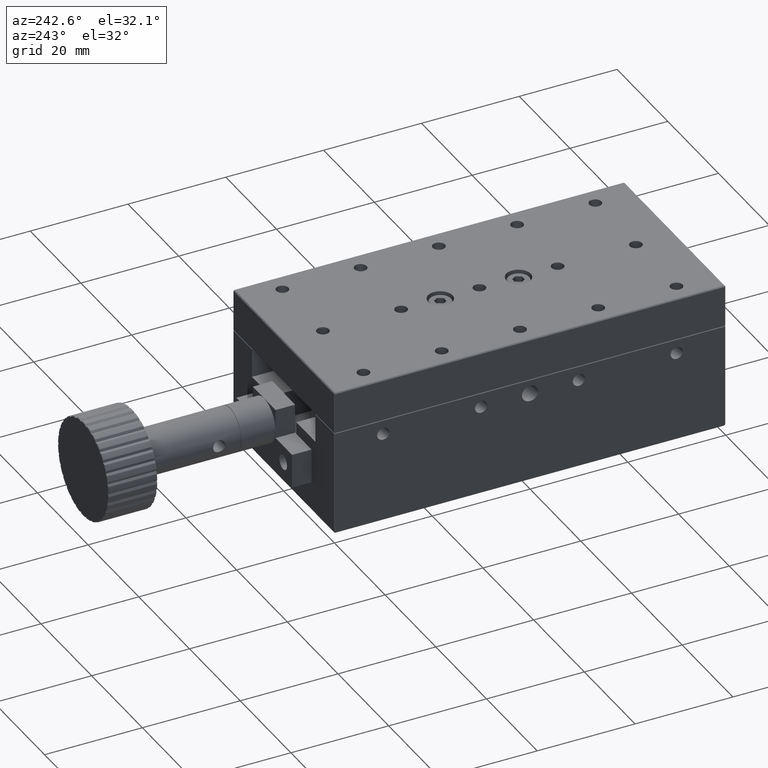
[diagram: clean part render]
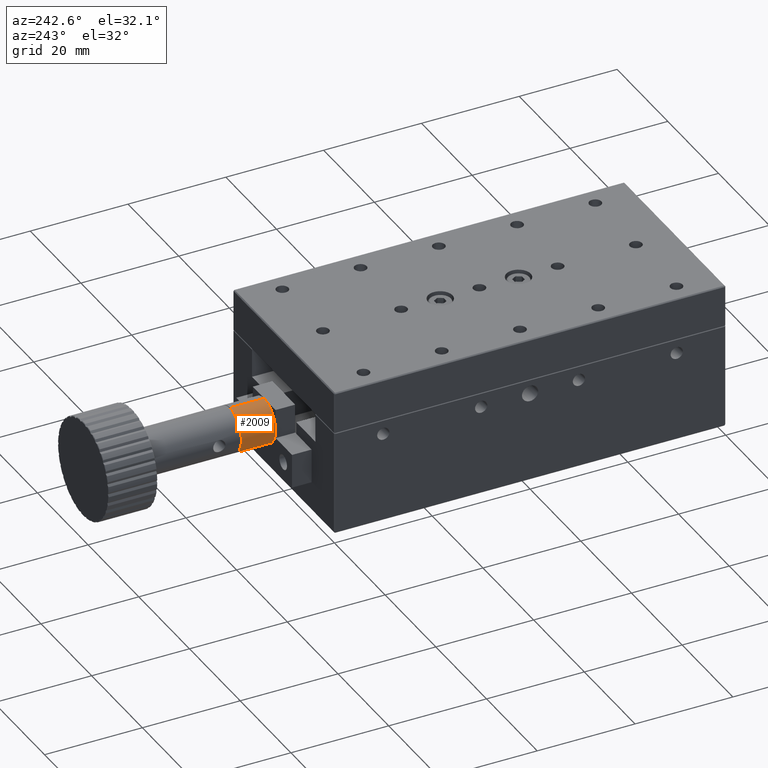
[diagram: same view with one face highlighted and labeled with its STEP entity id]
A machine part, auxiliary view. The second image highlights one B-rep face of the part: STEP entity #2009.
In plain terms, the highlighted cylindrical surface (edge-blend (fillet) strip) has radius 4.5 mm, axis along (0, -1, -0).
Its self-contained STEP definition (entity closure, byte-faithful):
#413 = ORIENTED_EDGE ( 'NONE', *, *, #6730, .T. ) ;
#872 = VERTEX_POINT ( 'NONE', #26988 ) ;
#1443 = EDGE_CURVE ( 'NONE', #19476, #2236, #15905, .T. ) ;
#2009 = ADVANCED_FACE ( 'NONE', ( #2333 ), #10891, .T. ) ;
#2236 = VERTEX_POINT ( 'NONE', #14447 ) ;
#2333 = FACE_OUTER_BOUND ( 'NONE', #16877, .T. ) ;
#4769 = VECTOR ( 'NONE', #22023, 1000.000000000000000 ) ;
#6003 = DIRECTION ( 'NONE',  ( -0.0000000000000000000, 1.000000000000000000, 0.0000000000000000000 ) ) ;
#6516 = CARTESIAN_POINT ( 'NONE',  ( 0.0000000000000000000, 51.00000000000000700, 14.50000000000000000 ) ) ;
#6574 = ORIENTED_EDGE ( 'NONE', *, *, #20608, .T. ) ;
#6730 = EDGE_CURVE ( 'NONE', #872, #8180, #9703, .T. ) ;
#7759 = DIRECTION ( 'NONE',  ( 0.0000000000000000000, 0.0000000000000000000, -1.000000000000000000 ) ) ;
#8180 = VERTEX_POINT ( 'NONE', #16291 ) ;
#9166 = AXIS2_PLACEMENT_3D ( 'NONE', #18705, #6003, #20789 ) ;
#9703 = LINE ( 'NONE', #23446, #4769 ) ;
#10891 = CYLINDRICAL_SURFACE ( 'NONE', #17944, 4.499999999673135200 ) ;
#10959 = AXIS2_PLACEMENT_3D ( 'NONE', #11991, #26728, #14126 ) ;
#11991 = CARTESIAN_POINT ( 'NONE',  ( 0.0000000000000000000, 51.00000000000000700, 14.50000000000000000 ) ) ;
#14126 = DIRECTION ( 'NONE',  ( 0.0000000000000000000, 0.0000000000000000000, -1.000000000000000000 ) ) ;
#14166 = DIRECTION ( 'NONE',  ( 0.0000000000000000000, -1.000000000000000000, -0.0000000000000000000 ) ) ;
#14447 = CARTESIAN_POINT ( 'NONE',  ( 5.510910595762797900E-016, 44.00000000000000000, 18.99999999967313600 ) ) ;
#14659 = ORIENTED_EDGE ( 'NONE', *, *, #1443, .F. ) ;
#15905 = LINE ( 'NONE', #23147, #26455 ) ;
#16291 = CARTESIAN_POINT ( 'NONE',  ( 0.0000000000000000000, 44.00000000000000000, 10.00000000032686600 ) ) ;
#16407 = DIRECTION ( 'NONE',  ( 0.0000000000000000000, -1.000000000000000000, -0.0000000000000000000 ) ) ;
#16877 = EDGE_LOOP ( 'NONE', ( #14659, #19658, #413, #6574 ) ) ;
#17944 = AXIS2_PLACEMENT_3D ( 'NONE', #6516, #16407, #7759 ) ;
#18705 = CARTESIAN_POINT ( 'NONE',  ( 0.0000000000000000000, 44.00000000000000000, 14.50000000000000000 ) ) ;
#19476 = VERTEX_POINT ( 'NONE', #26450 ) ;
#19658 = ORIENTED_EDGE ( 'NONE', *, *, #21128, .F. ) ;
#20608 = EDGE_CURVE ( 'NONE', #8180, #2236, #24465, .T. ) ;
#20789 = DIRECTION ( 'NONE',  ( 0.0000000000000000000, 0.0000000000000000000, -1.000000000000000000 ) ) ;
#21128 = EDGE_CURVE ( 'NONE', #872, #19476, #25386, .T. ) ;
#22023 = DIRECTION ( 'NONE',  ( 0.0000000000000000000, -1.000000000000000000, -0.0000000000000000000 ) ) ;
#23147 = CARTESIAN_POINT ( 'NONE',  ( 5.510910595762796900E-016, 51.00000000000000700, 18.99999999967313600 ) ) ;
#23446 = CARTESIAN_POINT ( 'NONE',  ( 0.0000000000000000000, 51.00000000000000700, 10.00000000032686600 ) ) ;
#24465 = CIRCLE ( 'NONE', #9166, 4.499999999673135200 ) ;
#25386 = CIRCLE ( 'NONE', #10959, 4.499999999673135200 ) ;
#26450 = CARTESIAN_POINT ( 'NONE',  ( 5.510910595762797900E-016, 51.00000000000000700, 18.99999999967313600 ) ) ;
#26455 = VECTOR ( 'NONE', #14166, 1000.000000000000000 ) ;
#26728 = DIRECTION ( 'NONE',  ( -0.0000000000000000000, 1.000000000000000000, 0.0000000000000000000 ) ) ;
#26988 = CARTESIAN_POINT ( 'NONE',  ( 0.0000000000000000000, 51.00000000000000700, 10.00000000032686600 ) ) ;